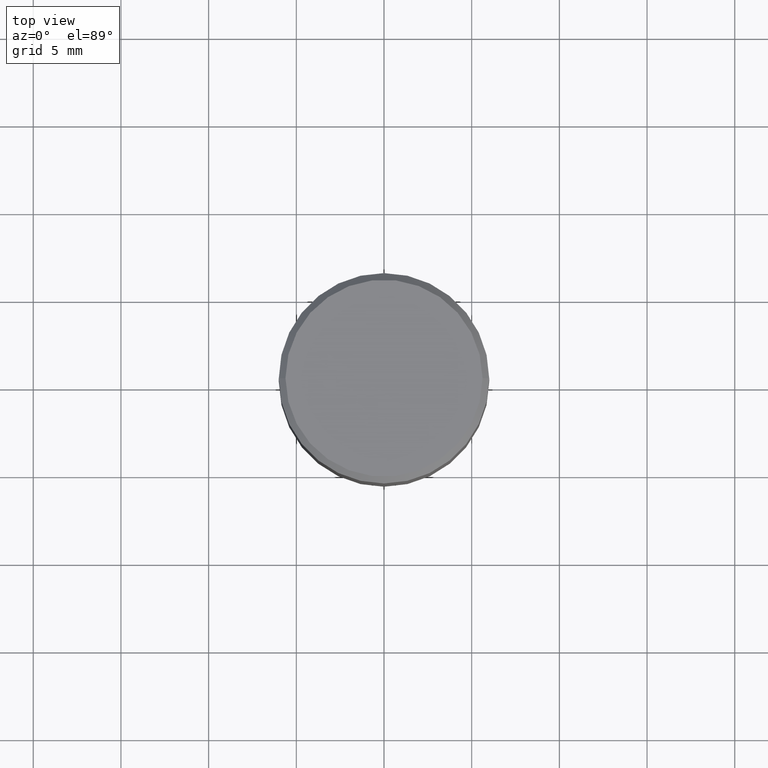
[diagram: clean part render]
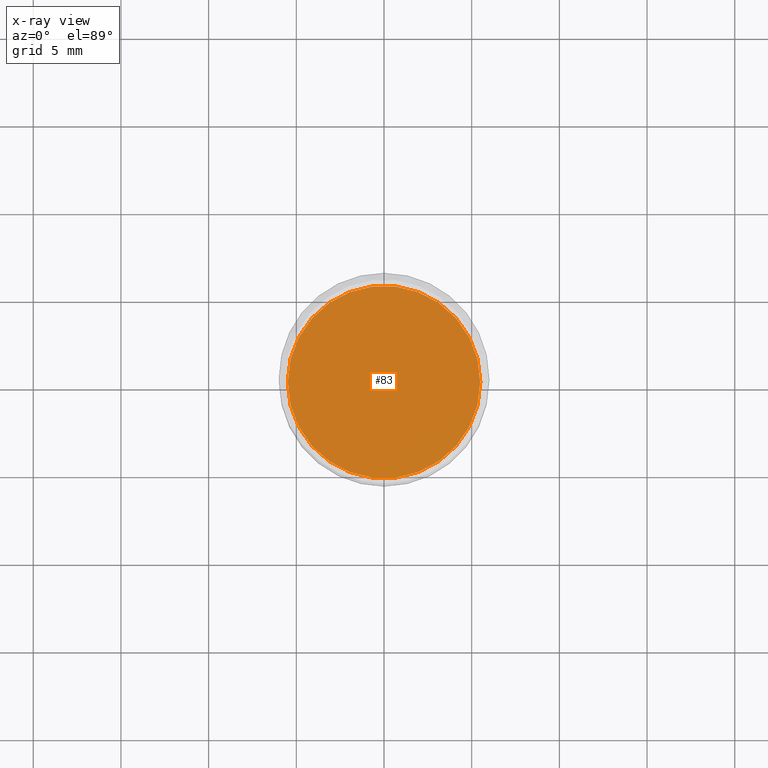
[diagram: x-ray — body ghosted, one internal face saturated and labeled with its STEP entity id]
A machine part, top view, then the same camera in x-ray: the body is ghosted and one INTERNAL B-rep face — a face not visible from any outside direction — is saturated and labeled: STEP entity #83.
In plain terms, the highlighted planar face has unit normal (-0, 0, 1).
Its self-contained STEP definition (entity closure, byte-faithful):
#20 = DIRECTION ( 'NONE',  ( -2.445468806185136597E-29, 3.491481338843145583E-15, 1.000000000000000000 ) ) ;
#31 = EDGE_CURVE ( 'NONE', #379, #87, #171, .T. ) ;
#56 = DIRECTION ( 'NONE',  ( -2.438088387897960049E-29, 3.491481338843145188E-15, 1.000000000000000000 ) ) ;
#83 = ADVANCED_FACE ( 'NONE', ( #206 ), #428, .F. ) ;
#87 = VERTEX_POINT ( 'NONE', #311 ) ;
#95 = CIRCLE ( 'NONE', #284, 0.2160500000000000198 ) ;
#96 = DIRECTION ( 'NONE',  ( 1.000000000000000000, -6.982962677686267499E-15, 0.000000000000000000 ) ) ;
#120 = ORIENTED_EDGE ( 'NONE', *, *, #165, .F. ) ;
#165 = EDGE_CURVE ( 'NONE', #87, #379, #95, .T. ) ;
#171 = CIRCLE ( 'NONE', #449, 0.2160500000000000198 ) ;
#201 = DIRECTION ( 'NONE',  ( 1.000000000000000000, -6.982962677686265922E-15, 4.876176775795935793E-29 ) ) ;
#206 = FACE_OUTER_BOUND ( 'NONE', #264, .T. ) ;
#238 = CARTESIAN_POINT ( 'NONE',  ( 1.261128263349675426E-29, -1.800556926441410962E-15, -0.5157000000000001583 ) ) ;
#254 = DIRECTION ( 'NONE',  ( -2.445468806185136597E-29, 3.491481338843145583E-15, 1.000000000000000000 ) ) ;
#264 = EDGE_LOOP ( 'NONE', ( #120, #372 ) ) ;
#274 = CARTESIAN_POINT ( 'NONE',  ( 1.261128263349675426E-29, -1.800556926441410962E-15, -0.5157000000000001583 ) ) ;
#278 = CARTESIAN_POINT ( 'NONE',  ( -0.2160500000000000198, -2.627801186576033655E-16, -0.5157000000000001583 ) ) ;
#284 = AXIS2_PLACEMENT_3D ( 'NONE', #434, #254, #370 ) ;
#311 = CARTESIAN_POINT ( 'NONE',  ( 0.2160500000000000198, -3.309226012955529172E-15, -0.5157000000000001583 ) ) ;
#370 = DIRECTION ( 'NONE',  ( 1.000000000000000000, -6.982962677686267499E-15, 0.000000000000000000 ) ) ;
#372 = ORIENTED_EDGE ( 'NONE', *, *, #31, .F. ) ;
#375 = AXIS2_PLACEMENT_3D ( 'NONE', #274, #56, #201 ) ;
#379 = VERTEX_POINT ( 'NONE', #278 ) ;
#428 = PLANE ( 'NONE',  #375 ) ;
#434 = CARTESIAN_POINT ( 'NONE',  ( 1.261128263349675426E-29, -1.800556926441410962E-15, -0.5157000000000001583 ) ) ;
#449 = AXIS2_PLACEMENT_3D ( 'NONE', #238, #20, #96 ) ;